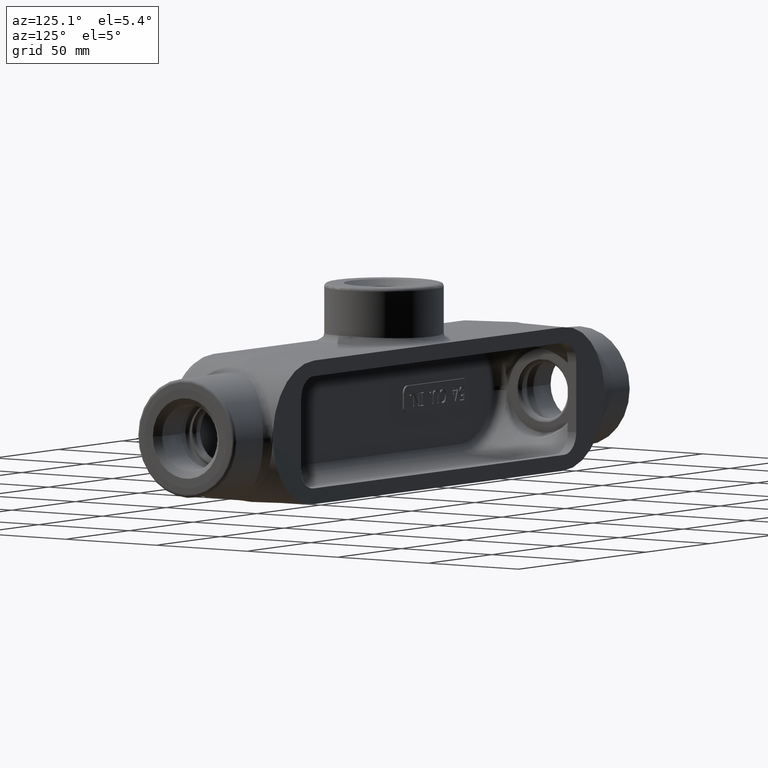
[diagram: clean part render]
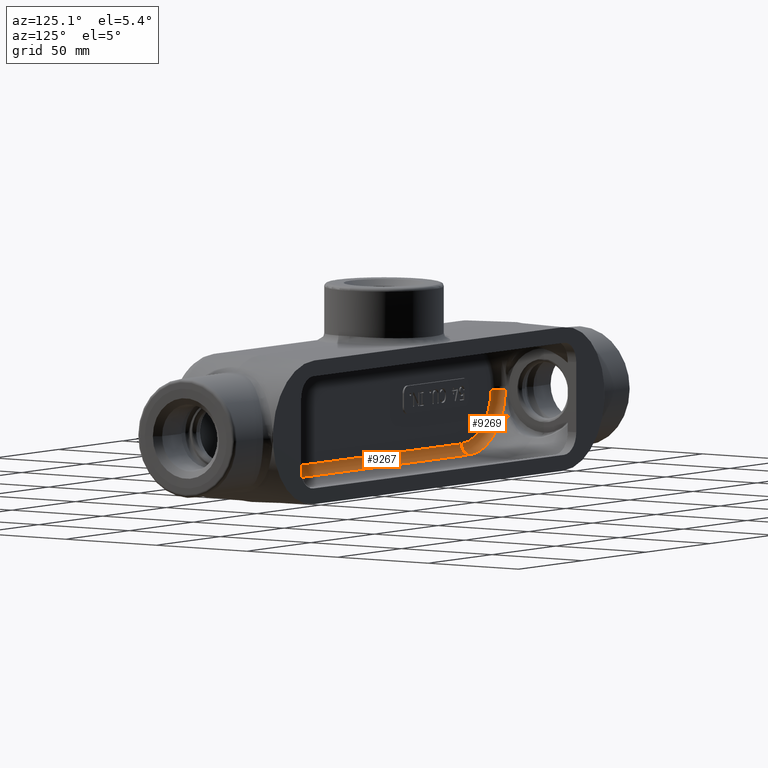
[diagram: same view with one multi-face feature highlighted, each face labeled with its STEP entity id]
A machine part, auxiliary view. The highlighted faces form ONE feature: a constant-radius fillet chain: 2 tangent blend faces with common blend radius 4.7625 mm. The faces share edges in the B-rep.
Their STEP definitions:
[1] entity #9267 (Cylinder):
#40=CYLINDRICAL_SURFACE('',#9819,0.1875);
#1212=FACE_OUTER_BOUND('',#1751,.T.);
#1751=EDGE_LOOP('',(#7178,#7179,#7180,#7181));
#2311=LINE('',#19242,#3045);
#2322=LINE('',#20390,#3056);
#3045=VECTOR('',#10734,0.393700787401575);
#3056=VECTOR('',#10845,0.393700787401575);
#3635=CIRCLE('',#9818,0.1875);
#3636=CIRCLE('',#9820,0.1875);
#4093=VERTEX_POINT('',#19239);
#4094=VERTEX_POINT('',#19241);
#4143=VERTEX_POINT('',#20384);
#4144=VERTEX_POINT('',#20388);
#5180=EDGE_CURVE('',#4094,#4093,#2311,.T.);
#5258=EDGE_CURVE('',#4143,#4093,#3635,.T.);
#5259=EDGE_CURVE('',#4144,#4094,#3636,.T.);
#5260=EDGE_CURVE('',#4143,#4144,#2322,.T.);
#7178=ORIENTED_EDGE('',*,*,#5259,.T.);
#7179=ORIENTED_EDGE('',*,*,#5180,.T.);
#7180=ORIENTED_EDGE('',*,*,#5258,.F.);
#7181=ORIENTED_EDGE('',*,*,#5260,.T.);
#9267=ADVANCED_FACE('',(#1212),#40,.F.);
#9818=AXIS2_PLACEMENT_3D('',#20386,#10839,#10840);
#9819=AXIS2_PLACEMENT_3D('',#20387,#10841,#10842);
#9820=AXIS2_PLACEMENT_3D('',#20389,#10843,#10844);
#10734=DIRECTION('',(1.,0.,-2.47871979982094E-16));
#10839=DIRECTION('center_axis',(-1.,0.,0.));
#10840=DIRECTION('ref_axis',(0.,-0.0261769483078725,-0.999657324975557));
#10841=DIRECTION('center_axis',(-1.,0.,2.47871979982094E-16));
#10842=DIRECTION('ref_axis',(0.,-0.716301943424654,-0.69779045984168));
#10843=DIRECTION('center_axis',(-1.,0.,0.));
#10844=DIRECTION('ref_axis',(0.,-0.0261769483078733,-0.999657324975557));
#10845=DIRECTION('',(-1.,0.,2.47871979982094E-16));
#19239=CARTESIAN_POINT('',(3.8125,-1.,-0.916159665132999));
#19241=CARTESIAN_POINT('',(-3.8125,-1.,-0.916159665132997));
#19242=CARTESIAN_POINT('',(2.46875,-1.,-0.916159665132998));
#20384=CARTESIAN_POINT('',(3.8125,-0.817408177807726,-1.10359541356592));
#20386=CARTESIAN_POINT('Origin',(3.8125,-0.812499999999999,-0.916159665132999));
#20387=CARTESIAN_POINT('Origin',(2.46875,-0.8125,-0.916159665132998));
#20388=CARTESIAN_POINT('',(-3.8125,-0.817408177807726,-1.10359541356591));
#20389=CARTESIAN_POINT('Origin',(-3.8125,-0.8125,-0.916159665132997));
#20390=CARTESIAN_POINT('',(2.46875,-0.817408177807726,-1.10359541356592));
[2] entity #9269 (Torus):
#18=TOROIDAL_SURFACE('',#9822,0.916159665132998,0.1875);
#580=B_SPLINE_CURVE_WITH_KNOTS('',3,(#19470,#19471,#19472,#19473,#19474,
#19475,#19476,#19477,#19478,#19479,#19480,#19481),.UNSPECIFIED.,.F.,.F.,
(4,2,2,2,2,4),(-0.0025252298412278,0.,0.177281624904075,0.363341658968293,
0.549379180356301,0.735405103605806),.UNSPECIFIED.);
#1214=FACE_OUTER_BOUND('',#1753,.T.);
#1753=EDGE_LOOP('',(#7186,#7187,#7188,#7189));
#3620=CIRCLE('',#9771,0.916159665132998);
#3636=CIRCLE('',#9820,0.1875);
#3638=CIRCLE('',#9823,1.10359541356591);
#4094=VERTEX_POINT('',#19241);
#4095=VERTEX_POINT('',#19243);
#4105=VERTEX_POINT('',#19455);
#4144=VERTEX_POINT('',#20388);
#5181=EDGE_CURVE('',#4095,#4094,#3620,.T.);
#5196=EDGE_CURVE('',#4095,#4105,#580,.T.);
#5259=EDGE_CURVE('',#4144,#4094,#3636,.T.);
#5264=EDGE_CURVE('',#4144,#4105,#3638,.T.);
#7186=ORIENTED_EDGE('',*,*,#5181,.T.);
#7187=ORIENTED_EDGE('',*,*,#5259,.F.);
#7188=ORIENTED_EDGE('',*,*,#5264,.T.);
#7189=ORIENTED_EDGE('',*,*,#5196,.F.);
#9269=ADVANCED_FACE('',(#1214),#18,.F.);
#9771=AXIS2_PLACEMENT_3D('',#19244,#10735,#10736);
#9820=AXIS2_PLACEMENT_3D('',#20389,#10843,#10844);
#9822=AXIS2_PLACEMENT_3D('',#20491,#10848,#10849);
#9823=AXIS2_PLACEMENT_3D('',#20492,#10850,#10851);
#10735=DIRECTION('center_axis',(0.,-1.,0.));
#10736=DIRECTION('ref_axis',(-0.696360550033688,0.,-0.717692123655248));
#10843=DIRECTION('center_axis',(-1.,0.,0.));
#10844=DIRECTION('ref_axis',(0.,-0.0261769483078733,-0.999657324975557));
#10848=DIRECTION('center_axis',(0.,1.,0.));
#10849=DIRECTION('ref_axis',(0.,0.,1.));
#10850=DIRECTION('center_axis',(0.,1.,0.));
#10851=DIRECTION('ref_axis',(-0.696360550033688,0.,-0.717692123655248));
#19241=CARTESIAN_POINT('',(-3.8125,-1.,-0.916159665132997));
#19243=CARTESIAN_POINT('',(-4.728159665133,-1.,-0.0302639994900212));
#19244=CARTESIAN_POINT('Origin',(-3.8125,-1.,1.74838271594513E-16));
#19455=CARTESIAN_POINT('',(-4.91559541356591,-0.81740817780772,-0.0332166436043316));
#19470=CARTESIAN_POINT('Ctrl Pts',(-4.728159665133,-0.999999999999999,-0.0302639994900212));
#19471=CARTESIAN_POINT('Ctrl Pts',(-4.72849101490697,-0.999999999999999,
-0.0302694738123109));
#19472=CARTESIAN_POINT('Ctrl Pts',(-4.72882236412682,-0.999999121658608,
-0.0302749466363291));
#19473=CARTESIAN_POINT('Ctrl Pts',(-4.75241551650259,-0.999874039178802,
-0.0306645244241136));
#19474=CARTESIAN_POINT('Ctrl Pts',(-4.77545283272732,-0.995422827965208,
-0.0310374232227126));
#19475=CARTESIAN_POINT('Ctrl Pts',(-4.81979180856373,-0.97789611326276,
-0.0317438604044577));
#19476=CARTESIAN_POINT('Ctrl Pts',(-4.84052738787154,-0.964571934741592,
-0.0320679188506825));
#19477=CARTESIAN_POINT('Ctrl Pts',(-4.87572248939808,-0.930726253826373,
-0.0326120606988744));
#19478=CARTESIAN_POINT('Ctrl Pts',(-4.88984627733234,-0.910529194964973,
-0.0328271017378903));
#19479=CARTESIAN_POINT('Ctrl Pts',(-4.90955721824992,-0.865858570430921,
-0.0331259648409431));
#19480=CARTESIAN_POINT('Ctrl Pts',(-4.91495636323224,-0.84181252546412,
-0.0332070241931427));
#19481=CARTESIAN_POINT('Ctrl Pts',(-4.91559541356592,-0.817408177807727,
-0.033216643622804));
#20388=CARTESIAN_POINT('',(-3.8125,-0.817408177807726,-1.10359541356591));
#20389=CARTESIAN_POINT('Origin',(-3.8125,-0.8125,-0.916159665132997));
#20491=CARTESIAN_POINT('Origin',(-3.8125,-0.812499999999999,1.74838271594513E-16));
#20492=CARTESIAN_POINT('Origin',(-3.8125,-0.817408177807726,8.74191357972564E-17));